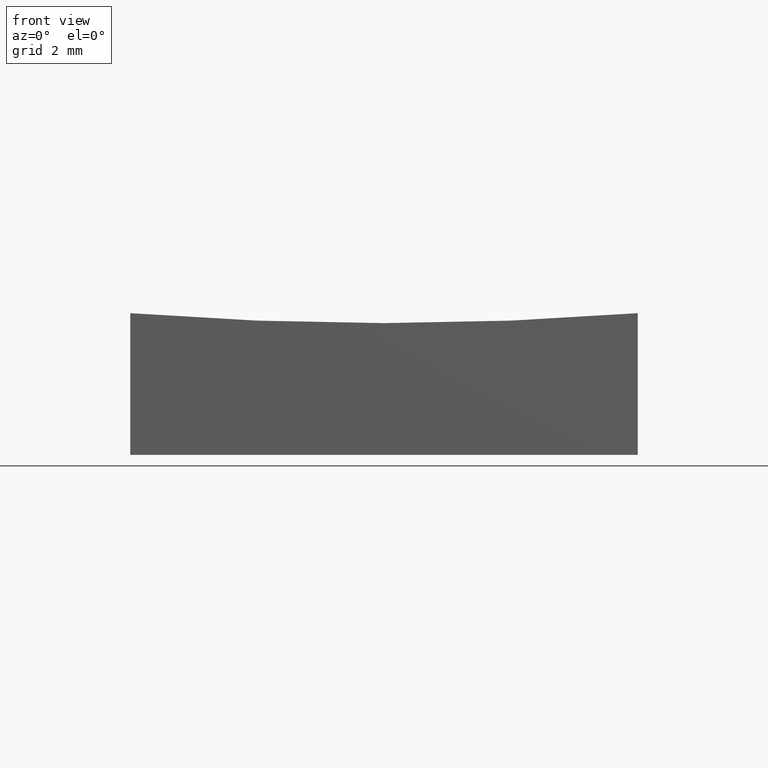
[diagram: clean part render]
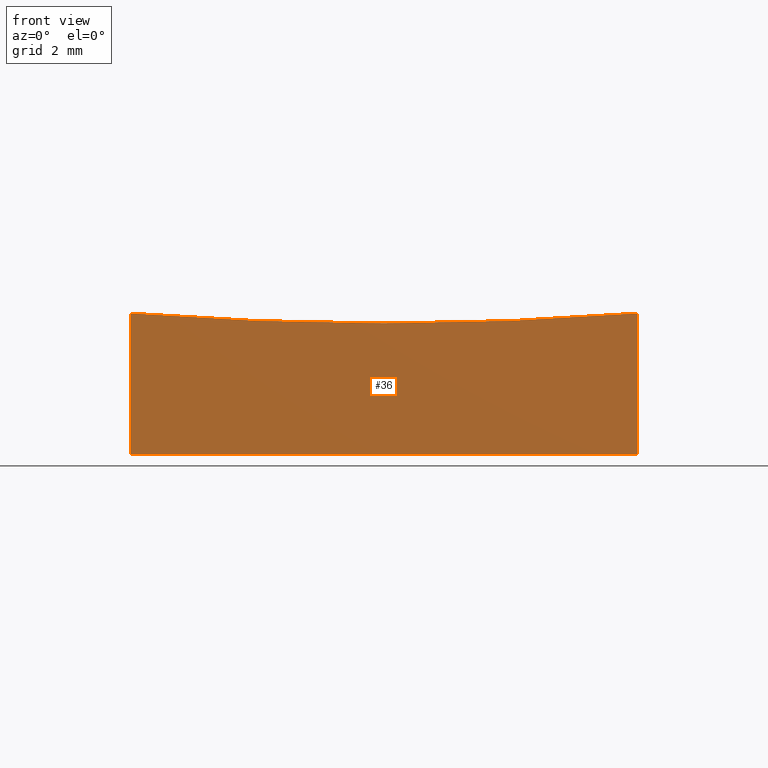
[diagram: same view with one face highlighted and labeled with its STEP entity id]
A machine part, front view. The second image highlights one B-rep face of the part: STEP entity #36.
In plain terms, the highlighted planar face has unit normal (0, 1, 0).
Its self-contained STEP definition (entity closure, byte-faithful):
#8 = CARTESIAN_POINT ( 'NONE',  ( 6.250000000000000000, -6.250000000000000888, 3.489780531053754409 ) ) ;
#23 = VERTEX_POINT ( 'NONE', #8 ) ;
#35 = PLANE ( 'NONE',  #87 ) ;
#36 = ADVANCED_FACE ( 'NONE', ( #223 ), #35, .F. ) ;
#39 = DIRECTION ( 'NONE',  ( 0.0000000000000000000, 0.0000000000000000000, 1.000000000000000000 ) ) ;
#43 = CARTESIAN_POINT ( 'NONE',  ( -6.250000000000000000, -6.250000000000000888, 0.0000000000000000000 ) ) ;
#50 = VERTEX_POINT ( 'NONE', #181 ) ;
#51 = EDGE_LOOP ( 'NONE', ( #178, #105, #60, #126 ) ) ;
#52 = DIRECTION ( 'NONE',  ( 0.0000000000000000000, 1.000000000000000000, 0.0000000000000000000 ) ) ;
#60 = ORIENTED_EDGE ( 'NONE', *, *, #184, .T. ) ;
#77 = LINE ( 'NONE', #138, #203 ) ;
#87 = AXIS2_PLACEMENT_3D ( 'NONE', #135, #239, #229 ) ;
#89 = CARTESIAN_POINT ( 'NONE',  ( 6.250000000000000000, -6.250000000000000888, 0.0000000000000000000 ) ) ;
#104 = EDGE_CURVE ( 'NONE', #23, #160, #230, .T. ) ;
#105 = ORIENTED_EDGE ( 'NONE', *, *, #112, .T. ) ;
#112 = EDGE_CURVE ( 'NONE', #23, #50, #137, .T. ) ;
#114 = CARTESIAN_POINT ( 'NONE',  ( -6.250000000000000000, -6.250000000000000888, 0.0000000000000000000 ) ) ;
#119 = LINE ( 'NONE', #114, #242 ) ;
#126 = ORIENTED_EDGE ( 'NONE', *, *, #164, .T. ) ;
#135 = CARTESIAN_POINT ( 'NONE',  ( -6.250000000000000000, -6.250000000000000888, 10.00000000000000000 ) ) ;
#137 = CIRCLE ( 'NONE', #169, 79.75548570474634857 ) ;
#138 = CARTESIAN_POINT ( 'NONE',  ( -6.250000000000000000, -6.250000000000000888, 10.00000000000000000 ) ) ;
#160 = VERTEX_POINT ( 'NONE', #89 ) ;
#164 = EDGE_CURVE ( 'NONE', #215, #160, #119, .T. ) ;
#169 = AXIS2_PLACEMENT_3D ( 'NONE', #172, #52, #39 ) ;
#172 = CARTESIAN_POINT ( 'NONE',  ( 1.016456843292302992E-14, -6.250000000000000888, 83.00000000000000000 ) ) ;
#178 = ORIENTED_EDGE ( 'NONE', *, *, #104, .F. ) ;
#180 = DIRECTION ( 'NONE',  ( -0.0000000000000000000, -0.0000000000000000000, -1.000000000000000000 ) ) ;
#181 = CARTESIAN_POINT ( 'NONE',  ( -6.250000000000000000, -6.250000000000000888, 3.489780531053754409 ) ) ;
#184 = EDGE_CURVE ( 'NONE', #50, #215, #77, .T. ) ;
#203 = VECTOR ( 'NONE', #232, 1000.000000000000000 ) ;
#215 = VERTEX_POINT ( 'NONE', #43 ) ;
#223 = FACE_OUTER_BOUND ( 'NONE', #51, .T. ) ;
#224 = VECTOR ( 'NONE', #180, 1000.000000000000000 ) ;
#226 = DIRECTION ( 'NONE',  ( 1.000000000000000000, 0.0000000000000000000, 0.0000000000000000000 ) ) ;
#229 = DIRECTION ( 'NONE',  ( 0.0000000000000000000, -0.0000000000000000000, 1.000000000000000000 ) ) ;
#230 = LINE ( 'NONE', #249, #224 ) ;
#232 = DIRECTION ( 'NONE',  ( -0.0000000000000000000, -0.0000000000000000000, -1.000000000000000000 ) ) ;
#239 = DIRECTION ( 'NONE',  ( 0.0000000000000000000, 1.000000000000000000, 0.0000000000000000000 ) ) ;
#242 = VECTOR ( 'NONE', #226, 1000.000000000000000 ) ;
#249 = CARTESIAN_POINT ( 'NONE',  ( 6.250000000000000000, -6.250000000000000888, 10.00000000000000000 ) ) ;